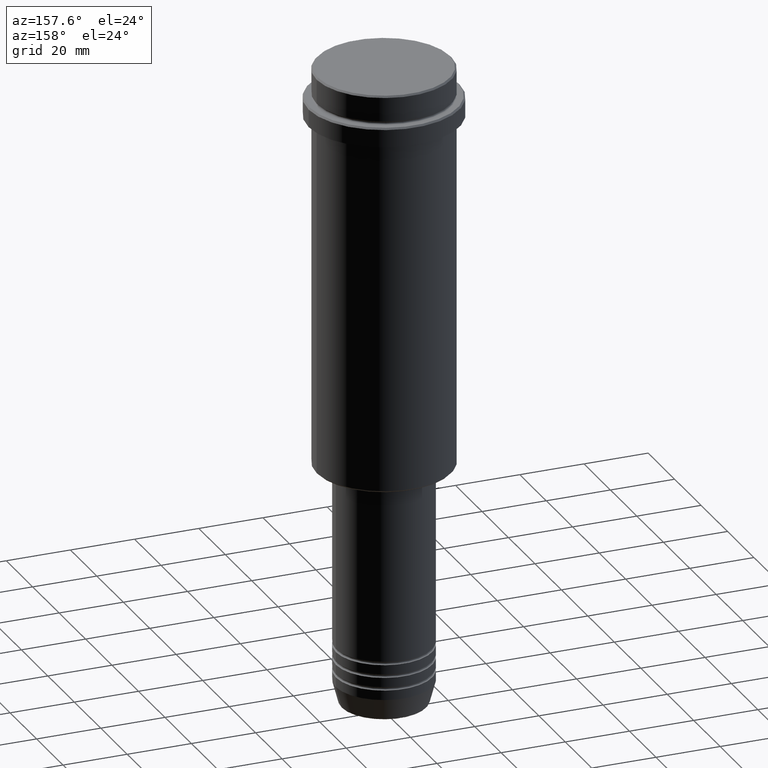
[diagram: clean part render]
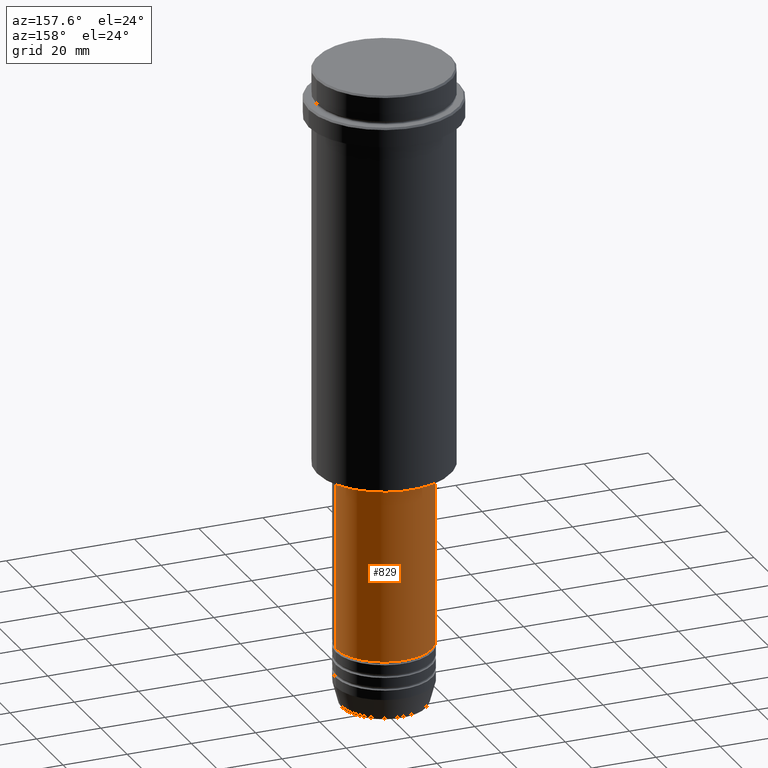
[diagram: same view with one face highlighted and labeled with its STEP entity id]
A machine part, auxiliary view. The second image highlights one B-rep face of the part: STEP entity #829.
In plain terms, the highlighted cylindrical surface (partial cylindrical patch) has radius 15 mm, axis along (-0, -0, 1).
Its self-contained STEP definition (entity closure, byte-faithful):
#8 = DIRECTION ( 'NONE',  ( -0.000000000000000000, -0.000000000000000000, 1.000000000000000000 ) ) ;
#35 = AXIS2_PLACEMENT_3D ( 'NONE', #350, #325, #1301 ) ;
#56 = DIRECTION ( 'NONE',  ( -0.000000000000000000, -0.000000000000000000, 1.000000000000000000 ) ) ;
#149 = VERTEX_POINT ( 'NONE', #394 ) ;
#165 = LINE ( 'NONE', #1046, #912 ) ;
#241 = CARTESIAN_POINT ( 'NONE',  ( 15.00000000000000000, 0.000000000000000000, 0.000000000000000000 ) ) ;
#267 = DIRECTION ( 'NONE',  ( -0.000000000000000000, -0.000000000000000000, 1.000000000000000000 ) ) ;
#325 = DIRECTION ( 'NONE',  ( -0.000000000000000000, -0.000000000000000000, 1.000000000000000000 ) ) ;
#350 = CARTESIAN_POINT ( 'NONE',  ( 0.000000000000000000, 0.000000000000000000, -126.0000000000000000 ) ) ;
#394 = CARTESIAN_POINT ( 'NONE',  ( -15.00000000000000000, 1.836970198721029589E-15, -126.0000000000000000 ) ) ;
#415 = DIRECTION ( 'NONE',  ( 1.000000000000000000, 0.000000000000000000, 0.000000000000000000 ) ) ;
#426 = CYLINDRICAL_SURFACE ( 'NONE', #1247, 15.00000000000000000 ) ;
#449 = CIRCLE ( 'NONE', #1161, 15.00000000000000000 ) ;
#466 = ORIENTED_EDGE ( 'NONE', *, *, #940, .T. ) ;
#507 = ORIENTED_EDGE ( 'NONE', *, *, #983, .F. ) ;
#515 = CARTESIAN_POINT ( 'NONE',  ( 15.00000000000000000, 0.000000000000000000, -180.9999999999998863 ) ) ;
#558 = DIRECTION ( 'NONE',  ( -0.000000000000000000, -0.000000000000000000, 1.000000000000000000 ) ) ;
#661 = CIRCLE ( 'NONE', #35, 15.00000000000000000 ) ;
#676 = ORIENTED_EDGE ( 'NONE', *, *, #1119, .T. ) ;
#798 = CARTESIAN_POINT ( 'NONE',  ( 0.000000000000000000, 0.000000000000000000, -180.9999999999998863 ) ) ;
#829 = ADVANCED_FACE ( 'NONE', ( #1288 ), #426, .T. ) ;
#912 = VECTOR ( 'NONE', #56, 1000.000000000000000 ) ;
#940 = EDGE_CURVE ( 'NONE', #1009, #1211, #449, .T. ) ;
#983 = EDGE_CURVE ( 'NONE', #1009, #1302, #1218, .T. ) ;
#1009 = VERTEX_POINT ( 'NONE', #515 ) ;
#1046 = CARTESIAN_POINT ( 'NONE',  ( -15.00000000000000000, 1.836970198721029589E-15, 0.000000000000000000 ) ) ;
#1081 = CARTESIAN_POINT ( 'NONE',  ( 0.000000000000000000, 0.000000000000000000, 0.000000000000000000 ) ) ;
#1099 = CARTESIAN_POINT ( 'NONE',  ( -15.00000000000000000, 1.836970198721029589E-15, -180.9999999999998863 ) ) ;
#1119 = EDGE_CURVE ( 'NONE', #1211, #149, #165, .T. ) ;
#1133 = DIRECTION ( 'NONE',  ( 1.000000000000000000, 0.000000000000000000, 0.000000000000000000 ) ) ;
#1161 = AXIS2_PLACEMENT_3D ( 'NONE', #798, #8, #1133 ) ;
#1185 = EDGE_CURVE ( 'NONE', #1302, #149, #661, .T. ) ;
#1211 = VERTEX_POINT ( 'NONE', #1099 ) ;
#1218 = LINE ( 'NONE', #241, #1291 ) ;
#1247 = AXIS2_PLACEMENT_3D ( 'NONE', #1081, #558, #415 ) ;
#1278 = ORIENTED_EDGE ( 'NONE', *, *, #1185, .F. ) ;
#1288 = FACE_OUTER_BOUND ( 'NONE', #1409, .T. ) ;
#1291 = VECTOR ( 'NONE', #267, 1000.000000000000000 ) ;
#1301 = DIRECTION ( 'NONE',  ( 1.000000000000000000, 0.000000000000000000, 0.000000000000000000 ) ) ;
#1302 = VERTEX_POINT ( 'NONE', #1348 ) ;
#1348 = CARTESIAN_POINT ( 'NONE',  ( 15.00000000000000000, 0.000000000000000000, -126.0000000000000000 ) ) ;
#1409 = EDGE_LOOP ( 'NONE', ( #466, #676, #1278, #507 ) ) ;